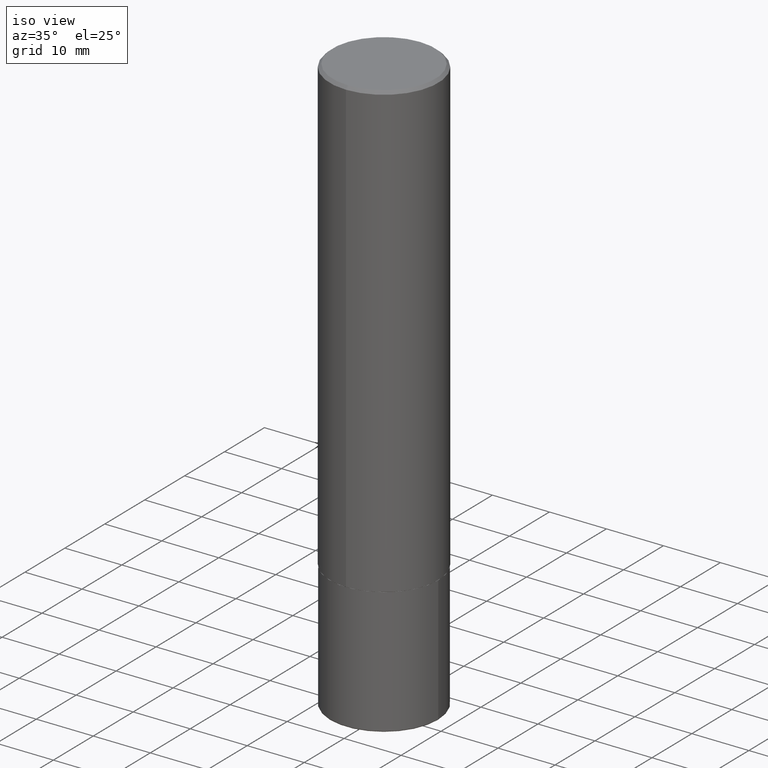
[diagram: clean part render]
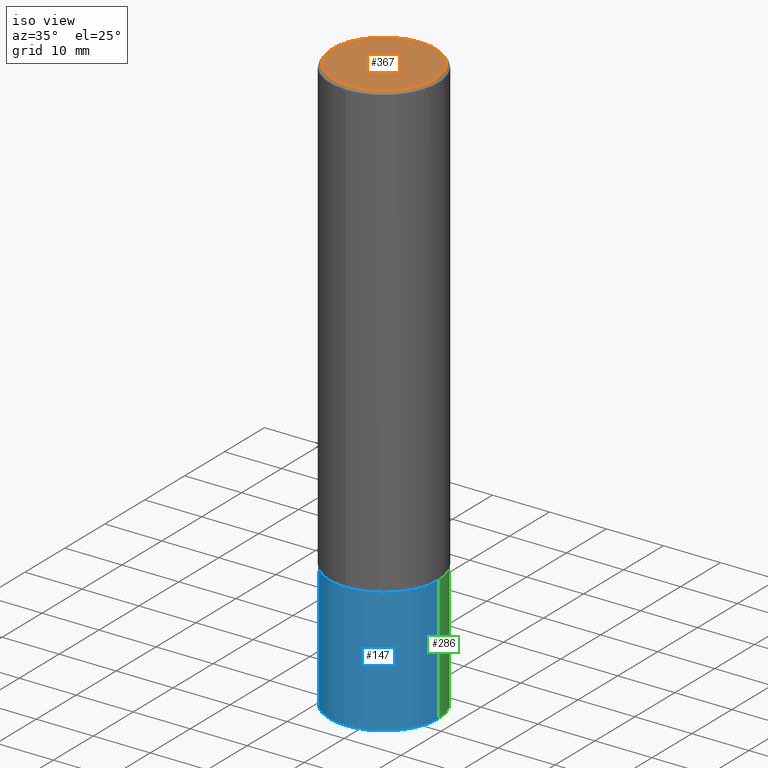
[diagram: same view with three faces highlighted in distinct colors, each labeled with its STEP entity id]
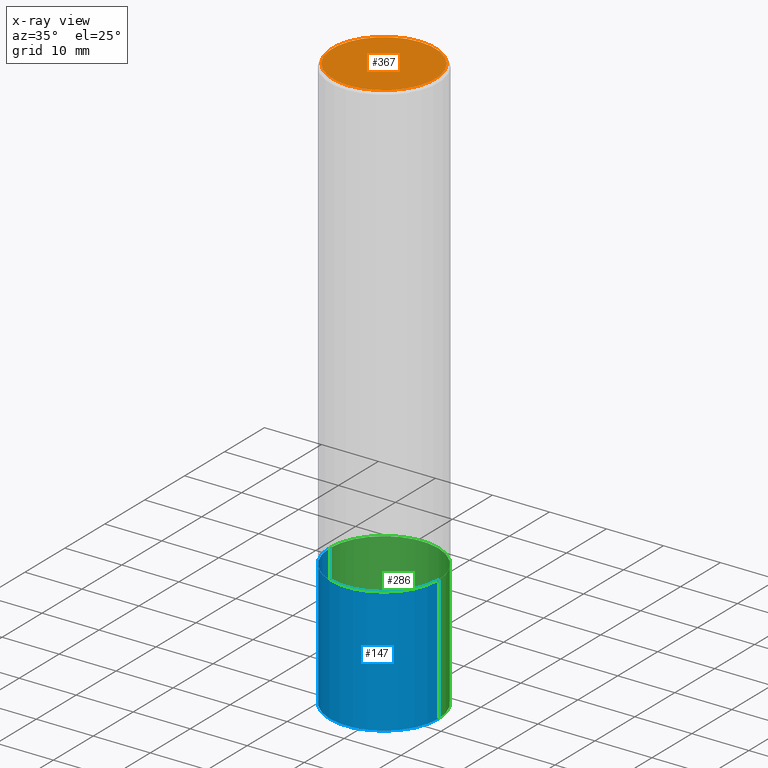
[diagram: x-ray of the same camera — body ghosted, the three highlighted faces saturated]
A machine part, iso view with three faces highlighted in distinct colors.
The next image is the same camera in x-ray (body ghosted, the three faces saturated) — at least one of them is partly hidden behind the body in this view.
Their STEP definitions:

[orange] entity #367 — the highlighted planar face has unit normal (0, -0, -1).
#4 = AXIS2_PLACEMENT_3D ( 'NONE', #348, #188, #56 ) ;
#8 = VERTEX_POINT ( 'NONE', #112 ) ;
#14 = ORIENTED_EDGE ( 'NONE', *, *, #101, .T. ) ;
#27 = CIRCLE ( 'NONE', #4, 0.3549999999999999822 ) ;
#34 = ORIENTED_EDGE ( 'NONE', *, *, #323, .T. ) ;
#54 = AXIS2_PLACEMENT_3D ( 'NONE', #209, #342, #173 ) ;
#56 = DIRECTION ( 'NONE',  ( -6.982962677686265922E-15, -1.000000000000000000, 3.490725905101791626E-15 ) ) ;
#101 = EDGE_CURVE ( 'NONE', #8, #154, #179, .T. ) ;
#112 = CARTESIAN_POINT ( 'NONE',  ( -2.504081769186608610E-15, -0.3549999999999999822, 1.358457867055767357E-15 ) ) ;
#122 = FACE_OUTER_BOUND ( 'NONE', #345, .T. ) ;
#154 = VERTEX_POINT ( 'NONE', #399 ) ;
#171 = DIRECTION ( 'NONE',  ( -6.982962677686265922E-15, -1.000000000000000000, 3.490725905101791626E-15 ) ) ;
#173 = DIRECTION ( 'NONE',  ( 6.982962677686265922E-15, 1.000000000000000000, -3.490725905101792021E-15 ) ) ;
#179 = CIRCLE ( 'NONE', #240, 0.3549999999999999822 ) ;
#188 = DIRECTION ( 'NONE',  ( -2.445996322747269804E-29, 3.490725905101792415E-15, 1.000000000000000000 ) ) ;
#209 = CARTESIAN_POINT ( 'NONE',  ( 2.478951750578624209E-15, 0.3549999999999999822, -1.179582610938820655E-15 ) ) ;
#240 = AXIS2_PLACEMENT_3D ( 'NONE', #366, #336, #171 ) ;
#246 = PLANE ( 'NONE',  #54 ) ;
#323 = EDGE_CURVE ( 'NONE', #154, #8, #27, .T. ) ;
#336 = DIRECTION ( 'NONE',  ( -2.445996322747269804E-29, 3.490725905101792415E-15, 1.000000000000000000 ) ) ;
#342 = DIRECTION ( 'NONE',  ( 2.445996322747270084E-29, -3.490725905101792021E-15, -1.000000000000000000 ) ) ;
#345 = EDGE_LOOP ( 'NONE', ( #34, #14 ) ) ;
#348 = CARTESIAN_POINT ( 'NONE',  ( -2.916854791283520060E-45, 4.162696602060960419E-31, 1.192501707446312088E-16 ) ) ;
#366 = CARTESIAN_POINT ( 'NONE',  ( -2.916854791283520060E-45, 4.162696602060960419E-31, 1.192501707446312088E-16 ) ) ;
#367 = ADVANCED_FACE ( 'NONE', ( #122 ), #246, .F. ) ;
#399 = CARTESIAN_POINT ( 'NONE',  ( 2.548781377355487507E-15, 0.3549999999999999822, -1.119957525566504890E-15 ) ) ;

[blue] entity #147 — the highlighted cylindrical surface (partial cylindrical patch) has radius 9.525 mm, axis along (-0, 0, 1).
#16 = LINE ( 'NONE', #113, #401 ) ;
#23 = DIRECTION ( 'NONE',  ( -2.445468806185136877E-29, 3.491481338843145188E-15, 1.000000000000000000 ) ) ;
#28 = EDGE_CURVE ( 'NONE', #291, #232, #170, .T. ) ;
#48 = CARTESIAN_POINT ( 'NONE',  ( 0.3749999999999999445, -2.618611004132349622E-15, 1.828566290923475642E-29 ) ) ;
#58 = AXIS2_PLACEMENT_3D ( 'NONE', #251, #218, #189 ) ;
#70 = CYLINDRICAL_SURFACE ( 'NONE', #87, 0.3749999999999999445 ) ;
#75 = DIRECTION ( 'NONE',  ( 1.000000000000000000, -6.982962677686266711E-15, 4.876176775795935793E-29 ) ) ;
#81 = EDGE_LOOP ( 'NONE', ( #332, #294, #320, #178 ) ) ;
#82 = EDGE_CURVE ( 'NONE', #339, #232, #166, .T. ) ;
#87 = AXIS2_PLACEMENT_3D ( 'NONE', #292, #132, #75 ) ;
#113 = CARTESIAN_POINT ( 'NONE',  ( -0.3749999999999999445, 2.664535259100375303E-15, -1.844600658845589318E-29 ) ) ;
#119 = EDGE_CURVE ( 'NONE', #416, #339, #16, .T. ) ;
#132 = DIRECTION ( 'NONE',  ( -2.445468806185136597E-29, 3.491481338843145583E-15, 1.000000000000000000 ) ) ;
#147 = ADVANCED_FACE ( 'NONE', ( #321 ), #70, .T. ) ;
#166 = CIRCLE ( 'NONE', #384, 0.3750000000000000555 ) ;
#170 = LINE ( 'NONE', #48, #205 ) ;
#178 = ORIENTED_EDGE ( 'NONE', *, *, #82, .F. ) ;
#189 = DIRECTION ( 'NONE',  ( 1.000000000000000000, -6.982962677686263555E-15, 0.000000000000000000 ) ) ;
#198 = DIRECTION ( 'NONE',  ( 1.000000000000000000, -6.982962677686266711E-15, 0.000000000000000000 ) ) ;
#201 = EDGE_CURVE ( 'NONE', #416, #291, #349, .T. ) ;
#205 = VECTOR ( 'NONE', #265, 39.37007874015748143 ) ;
#218 = DIRECTION ( 'NONE',  ( -2.445468806185136597E-29, 3.491481338843145583E-15, 1.000000000000000000 ) ) ;
#232 = VERTEX_POINT ( 'NONE', #239 ) ;
#236 = CARTESIAN_POINT ( 'NONE',  ( 7.642090019328551865E-29, -1.091087918388483118E-14, -3.125000000000000000 ) ) ;
#239 = CARTESIAN_POINT ( 'NONE',  ( 0.3750000000000000555, -1.352949018801718119E-14, -3.125000000000000000 ) ) ;
#251 = CARTESIAN_POINT ( 'NONE',  ( 9.757420536678694842E-29, -1.393101054198414910E-14, -3.989999999999999769 ) ) ;
#265 = DIRECTION ( 'NONE',  ( -2.445468806185136877E-29, 3.491481338843145188E-15, 1.000000000000000000 ) ) ;
#284 = CARTESIAN_POINT ( 'NONE',  ( -0.3749999999999999445, -1.126647528288377341E-14, -3.989999999999999769 ) ) ;
#291 = VERTEX_POINT ( 'NONE', #293 ) ;
#292 = CARTESIAN_POINT ( 'NONE',  ( 0.000000000000000000, 0.000000000000000000, 0.000000000000000000 ) ) ;
#293 = CARTESIAN_POINT ( 'NONE',  ( 0.3749999999999999445, -1.654962154611649754E-14, -3.989999999999999769 ) ) ;
#294 = ORIENTED_EDGE ( 'NONE', *, *, #201, .T. ) ;
#320 = ORIENTED_EDGE ( 'NONE', *, *, #28, .T. ) ;
#321 = FACE_OUTER_BOUND ( 'NONE', #81, .T. ) ;
#332 = ORIENTED_EDGE ( 'NONE', *, *, #119, .F. ) ;
#339 = VERTEX_POINT ( 'NONE', #411 ) ;
#349 = CIRCLE ( 'NONE', #58, 0.3749999999999999445 ) ;
#375 = DIRECTION ( 'NONE',  ( -2.445468806185136597E-29, 3.491481338843145583E-15, 1.000000000000000000 ) ) ;
#384 = AXIS2_PLACEMENT_3D ( 'NONE', #236, #375, #198 ) ;
#401 = VECTOR ( 'NONE', #23, 39.37007874015748143 ) ;
#411 = CARTESIAN_POINT ( 'NONE',  ( -0.3750000000000000555, -9.756409603834113655E-15, -3.125000000000000000 ) ) ;
#416 = VERTEX_POINT ( 'NONE', #284 ) ;

[green] entity #286 — the highlighted cylindrical surface (partial cylindrical patch) has radius 9.525 mm, axis along (-0, 0, 1).
#1 = CARTESIAN_POINT ( 'NONE',  ( 9.757420536678694842E-29, -1.393101054198414910E-14, -3.989999999999999769 ) ) ;
#16 = LINE ( 'NONE', #113, #401 ) ;
#23 = DIRECTION ( 'NONE',  ( -2.445468806185136877E-29, 3.491481338843145188E-15, 1.000000000000000000 ) ) ;
#28 = EDGE_CURVE ( 'NONE', #291, #232, #170, .T. ) ;
#33 = CIRCLE ( 'NONE', #199, 0.3750000000000000555 ) ;
#46 = DIRECTION ( 'NONE',  ( 1.000000000000000000, -6.982962677686266711E-15, 0.000000000000000000 ) ) ;
#48 = CARTESIAN_POINT ( 'NONE',  ( 0.3749999999999999445, -2.618611004132349622E-15, 1.828566290923475642E-29 ) ) ;
#61 = AXIS2_PLACEMENT_3D ( 'NONE', #406, #157, #285 ) ;
#78 = ORIENTED_EDGE ( 'NONE', *, *, #28, .F. ) ;
#85 = CYLINDRICAL_SURFACE ( 'NONE', #61, 0.3749999999999999445 ) ;
#96 = DIRECTION ( 'NONE',  ( 1.000000000000000000, -6.982962677686263555E-15, 0.000000000000000000 ) ) ;
#113 = CARTESIAN_POINT ( 'NONE',  ( -0.3749999999999999445, 2.664535259100375303E-15, -1.844600658845589318E-29 ) ) ;
#115 = CIRCLE ( 'NONE', #176, 0.3749999999999999445 ) ;
#119 = EDGE_CURVE ( 'NONE', #416, #339, #16, .T. ) ;
#135 = CARTESIAN_POINT ( 'NONE',  ( 7.642090019328551865E-29, -1.091087918388483118E-14, -3.125000000000000000 ) ) ;
#155 = DIRECTION ( 'NONE',  ( -2.445468806185136597E-29, 3.491481338843145583E-15, 1.000000000000000000 ) ) ;
#157 = DIRECTION ( 'NONE',  ( -2.445468806185136597E-29, 3.491481338843145583E-15, 1.000000000000000000 ) ) ;
#165 = EDGE_CURVE ( 'NONE', #232, #339, #33, .T. ) ;
#170 = LINE ( 'NONE', #48, #205 ) ;
#176 = AXIS2_PLACEMENT_3D ( 'NONE', #1, #228, #96 ) ;
#193 = EDGE_CURVE ( 'NONE', #291, #416, #115, .T. ) ;
#199 = AXIS2_PLACEMENT_3D ( 'NONE', #135, #155, #46 ) ;
#205 = VECTOR ( 'NONE', #265, 39.37007874015748143 ) ;
#228 = DIRECTION ( 'NONE',  ( -2.445468806185136597E-29, 3.491481338843145583E-15, 1.000000000000000000 ) ) ;
#232 = VERTEX_POINT ( 'NONE', #239 ) ;
#239 = CARTESIAN_POINT ( 'NONE',  ( 0.3750000000000000555, -1.352949018801718119E-14, -3.125000000000000000 ) ) ;
#265 = DIRECTION ( 'NONE',  ( -2.445468806185136877E-29, 3.491481338843145188E-15, 1.000000000000000000 ) ) ;
#284 = CARTESIAN_POINT ( 'NONE',  ( -0.3749999999999999445, -1.126647528288377341E-14, -3.989999999999999769 ) ) ;
#285 = DIRECTION ( 'NONE',  ( 1.000000000000000000, -6.982962677686266711E-15, 4.876176775795935793E-29 ) ) ;
#286 = ADVANCED_FACE ( 'NONE', ( #405 ), #85, .T. ) ;
#291 = VERTEX_POINT ( 'NONE', #293 ) ;
#293 = CARTESIAN_POINT ( 'NONE',  ( 0.3749999999999999445, -1.654962154611649754E-14, -3.989999999999999769 ) ) ;
#339 = VERTEX_POINT ( 'NONE', #411 ) ;
#352 = ORIENTED_EDGE ( 'NONE', *, *, #193, .T. ) ;
#362 = EDGE_LOOP ( 'NONE', ( #352, #385, #370, #78 ) ) ;
#370 = ORIENTED_EDGE ( 'NONE', *, *, #165, .F. ) ;
#385 = ORIENTED_EDGE ( 'NONE', *, *, #119, .T. ) ;
#401 = VECTOR ( 'NONE', #23, 39.37007874015748143 ) ;
#405 = FACE_OUTER_BOUND ( 'NONE', #362, .T. ) ;
#406 = CARTESIAN_POINT ( 'NONE',  ( 0.000000000000000000, 0.000000000000000000, 0.000000000000000000 ) ) ;
#411 = CARTESIAN_POINT ( 'NONE',  ( -0.3750000000000000555, -9.756409603834113655E-15, -3.125000000000000000 ) ) ;
#416 = VERTEX_POINT ( 'NONE', #284 ) ;